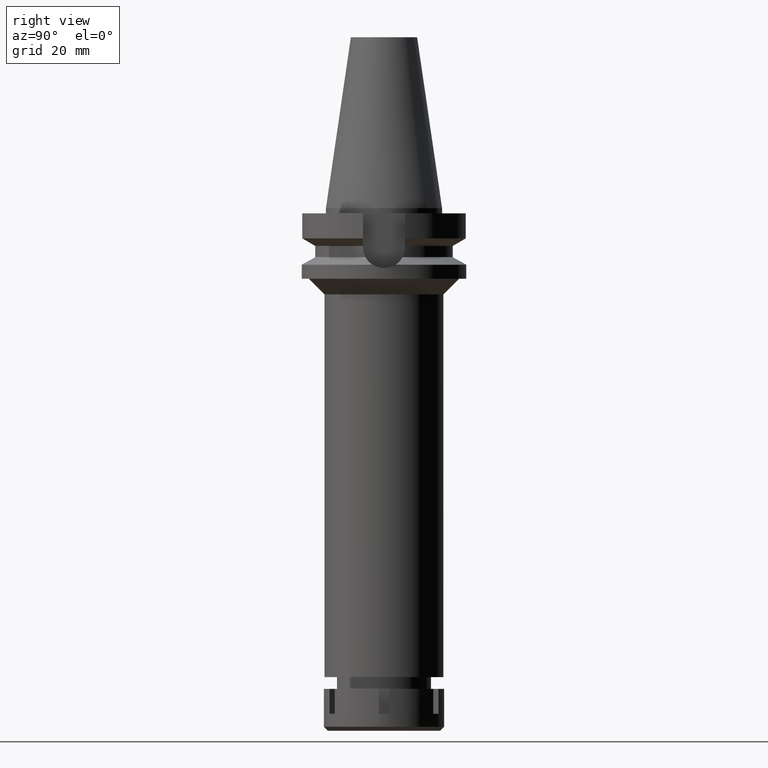
[diagram: clean part render]
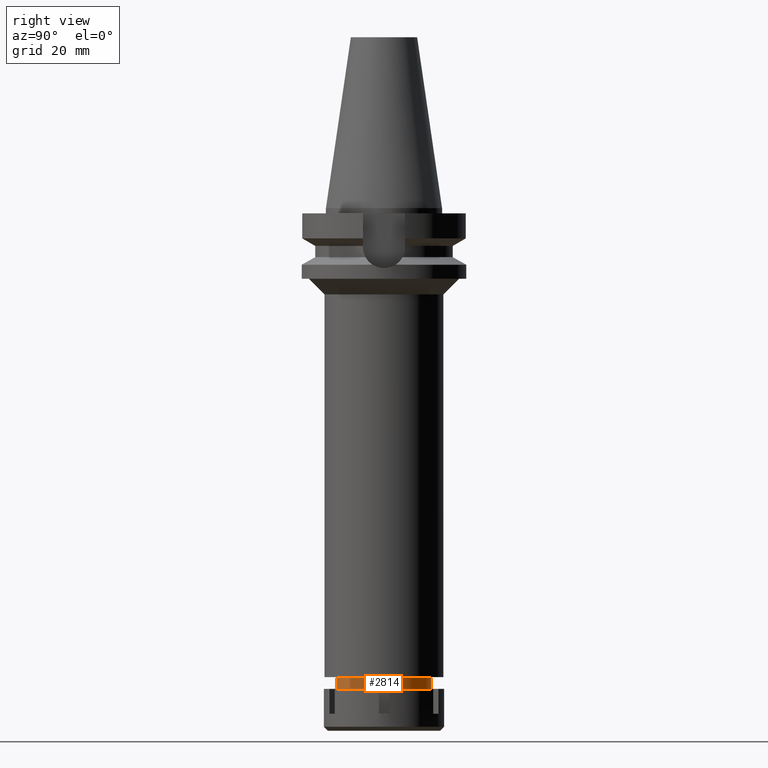
[diagram: same view with one face highlighted and labeled with its STEP entity id]
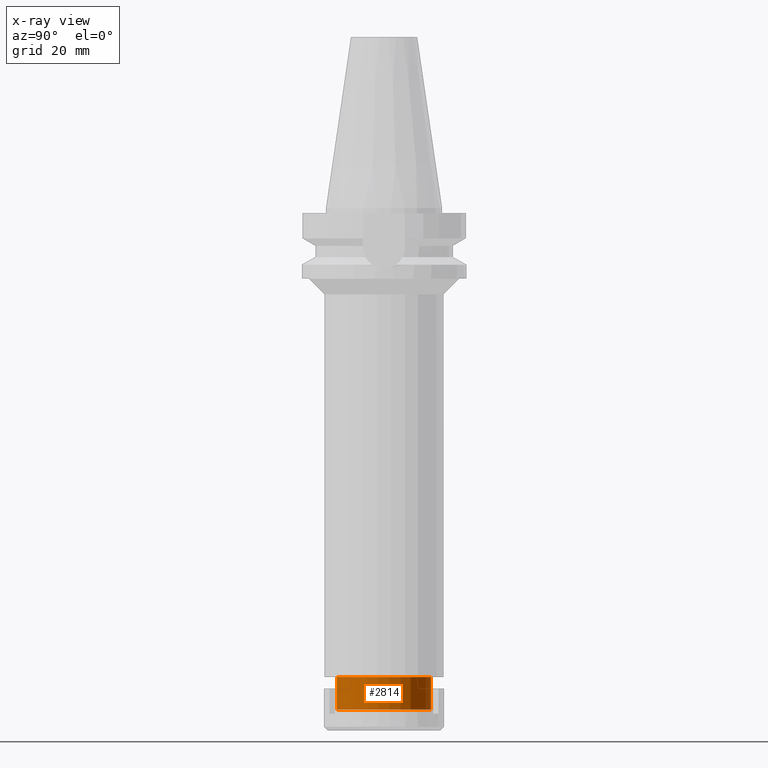
[diagram: x-ray of the same camera — body ghosted, the highlighted face saturated]
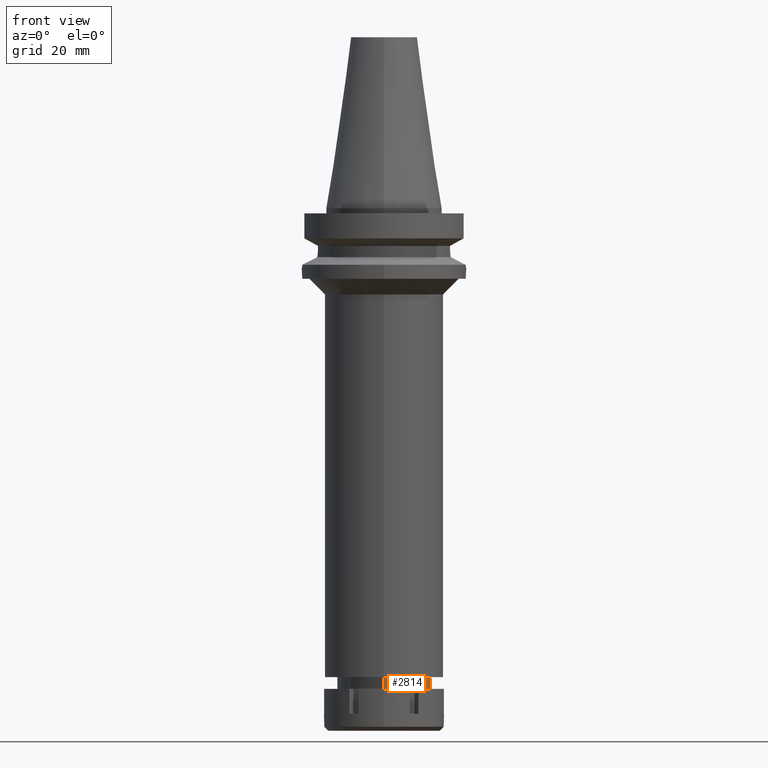
[diagram: same view with one face highlighted and labeled with its STEP entity id]
A machine part, right view. The second image highlights one B-rep face of the part: STEP entity #2814.
The next image is the same camera in x-ray: the body ghosted, the highlighted face saturated — about 0% of this face is hidden behind the body in this view.
A second angle (front view) of the same face is appended — the face is thin or edge-on in the first view.
In plain terms, the highlighted cylindrical surface (partial cylindrical patch) has radius 18 mm, axis along (0, 0, -1).
Its self-contained STEP definition (entity closure, byte-faithful):
#44 = LINE ( 'NONE', #2003, #1942 ) ;
#91 = DIRECTION ( 'NONE',  ( 0.0000000000000000000, 1.000000000000000000, 0.0000000000000000000 ) ) ;
#294 = CARTESIAN_POINT ( 'NONE',  ( 0.0000000000000000000, -18.00000000000000000, -192.0000000000000000 ) ) ;
#345 = CIRCLE ( 'NONE', #585, 18.00000000000000000 ) ;
#373 = CARTESIAN_POINT ( 'NONE',  ( 0.0000000000000000000, 2.183177848839999781E-14, 78.27000000000001023 ) ) ;
#489 = AXIS2_PLACEMENT_3D ( 'NONE', #373, #2246, #2861 ) ;
#540 = CARTESIAN_POINT ( 'NONE',  ( 0.0000000000000000000, 2.183177848839999781E-14, -192.0000000000000000 ) ) ;
#585 = AXIS2_PLACEMENT_3D ( 'NONE', #1491, #2339, #91 ) ;
#656 = ORIENTED_EDGE ( 'NONE', *, *, #2332, .T. ) ;
#717 = EDGE_LOOP ( 'NONE', ( #1277, #3535, #656, #1374 ) ) ;
#1211 = VERTEX_POINT ( 'NONE', #1311 ) ;
#1277 = ORIENTED_EDGE ( 'NONE', *, *, #2067, .T. ) ;
#1311 = CARTESIAN_POINT ( 'NONE',  ( 0.0000000000000000000, 18.00000000000000000, -179.5000000000000000 ) ) ;
#1348 = CIRCLE ( 'NONE', #3445, 18.00000000000000000 ) ;
#1374 = ORIENTED_EDGE ( 'NONE', *, *, #3578, .F. ) ;
#1491 = CARTESIAN_POINT ( 'NONE',  ( 0.0000000000000000000, 2.183177848839999781E-14, -179.5000000000000000 ) ) ;
#1565 = VERTEX_POINT ( 'NONE', #3484 ) ;
#1611 = LINE ( 'NONE', #2472, #1855 ) ;
#1654 = DIRECTION ( 'NONE',  ( 0.0000000000000000000, 0.0000000000000000000, 1.000000000000000000 ) ) ;
#1670 = DIRECTION ( 'NONE',  ( 0.0000000000000000000, -1.000000000000000000, 0.0000000000000000000 ) ) ;
#1772 = FACE_OUTER_BOUND ( 'NONE', #717, .T. ) ;
#1849 = VERTEX_POINT ( 'NONE', #294 ) ;
#1855 = VECTOR ( 'NONE', #2455, 1000.000000000000000 ) ;
#1942 = VECTOR ( 'NONE', #3370, 1000.000000000000000 ) ;
#1976 = VERTEX_POINT ( 'NONE', #2755 ) ;
#2003 = CARTESIAN_POINT ( 'NONE',  ( 0.0000000000000000000, -18.00000000000000000, -179.5000000000000000 ) ) ;
#2067 = EDGE_CURVE ( 'NONE', #1211, #1976, #345, .T. ) ;
#2246 = DIRECTION ( 'NONE',  ( 0.0000000000000000000, 0.0000000000000000000, -1.000000000000000000 ) ) ;
#2320 = CYLINDRICAL_SURFACE ( 'NONE', #489, 18.00000000000000000 ) ;
#2332 = EDGE_CURVE ( 'NONE', #1849, #1565, #1348, .T. ) ;
#2339 = DIRECTION ( 'NONE',  ( 0.0000000000000000000, 0.0000000000000000000, -1.000000000000000000 ) ) ;
#2455 = DIRECTION ( 'NONE',  ( 0.0000000000000000000, 0.0000000000000000000, -1.000000000000000000 ) ) ;
#2472 = CARTESIAN_POINT ( 'NONE',  ( 0.0000000000000000000, 18.00000000000000000, -179.5000000000000000 ) ) ;
#2755 = CARTESIAN_POINT ( 'NONE',  ( 0.0000000000000000000, -18.00000000000000000, -179.5000000000000000 ) ) ;
#2789 = EDGE_CURVE ( 'NONE', #1976, #1849, #44, .T. ) ;
#2814 = ADVANCED_FACE ( 'NONE', ( #1772 ), #2320, .T. ) ;
#2861 = DIRECTION ( 'NONE',  ( 0.0000000000000000000, -1.000000000000000000, 0.0000000000000000000 ) ) ;
#3370 = DIRECTION ( 'NONE',  ( 0.0000000000000000000, 0.0000000000000000000, -1.000000000000000000 ) ) ;
#3445 = AXIS2_PLACEMENT_3D ( 'NONE', #540, #1654, #1670 ) ;
#3484 = CARTESIAN_POINT ( 'NONE',  ( 0.0000000000000000000, 18.00000000000000000, -192.0000000000000000 ) ) ;
#3535 = ORIENTED_EDGE ( 'NONE', *, *, #2789, .T. ) ;
#3578 = EDGE_CURVE ( 'NONE', #1211, #1565, #1611, .T. ) ;